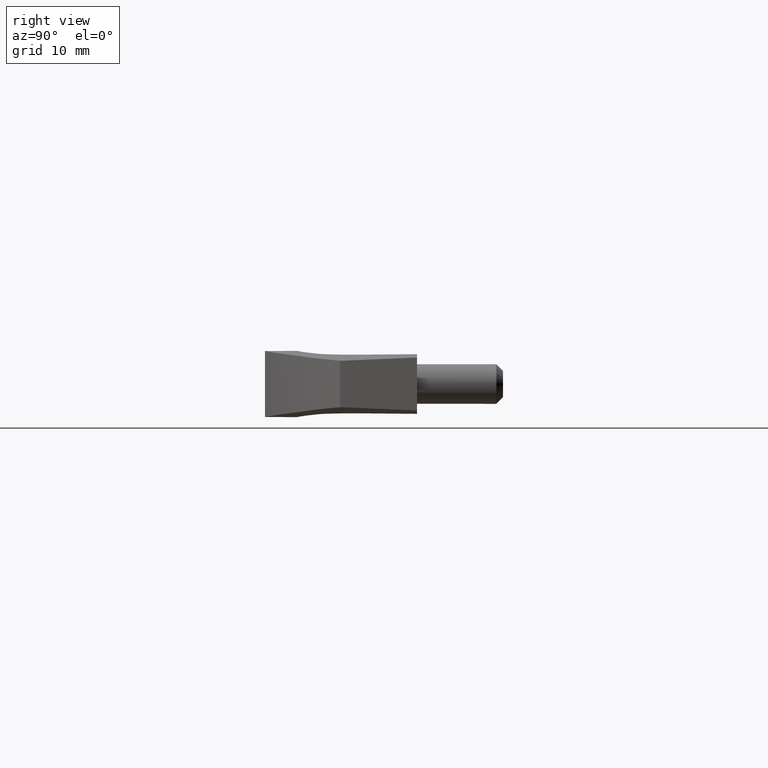
[diagram: clean part render]
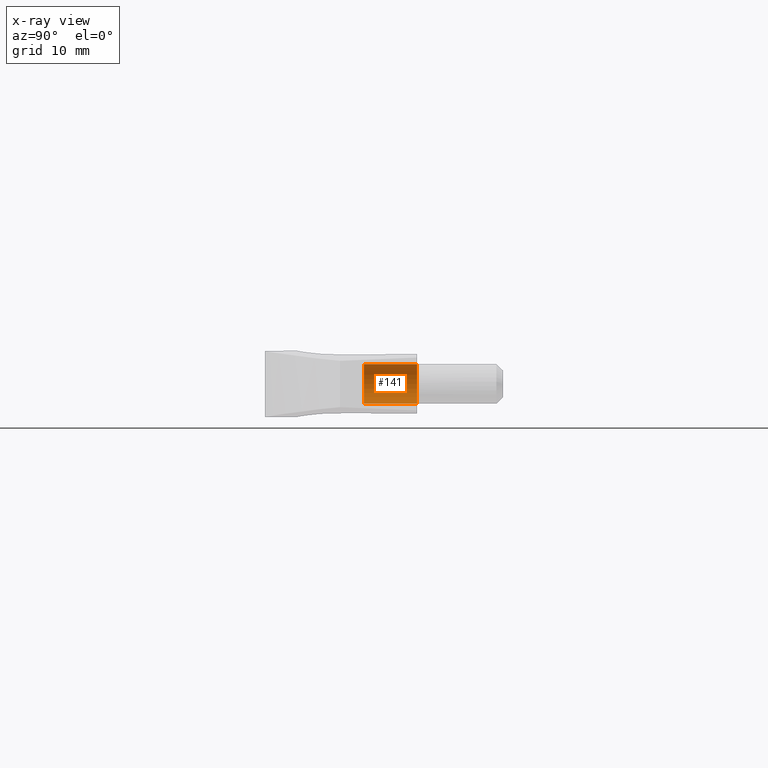
[diagram: x-ray — body ghosted, one internal face saturated and labeled with its STEP entity id]
A machine part, right view, then the same camera in x-ray: the body is ghosted and one INTERNAL B-rep face — a face not visible from any outside direction — is saturated and labeled: STEP entity #141.
In plain terms, the highlighted cylindrical surface (edge-blend (fillet) strip) has radius 3 mm, axis along (-0, -1, -0).
Its self-contained STEP definition (entity closure, byte-faithful):
#141=ADVANCED_FACE('',(#348),#347,.F.);
#347=CYLINDRICAL_SURFACE('',#657,3.00000000000E+00);
#348=FACE_OUTER_BOUND('',#658,.T.);
#654=CARTESIAN_POINT('',(-4.35000000000E+01,-4.89268249254E-15,8.20000000000E+00));
#655=DIRECTION('',(-1.07378739382E-14,-1.12728726745E-15,1.00000000000E+00));
#656=DIRECTION('',(-1.18034234657E-01,9.93009526364E-01,-1.48029736617E-16));
#657=AXIS2_PLACEMENT_3D('',#654,#655,#656);
#658=EDGE_LOOP('',(#780,#781,#782,#783));
#780=ORIENTED_EDGE('',*,*,#822,.T.);
#781=ORIENTED_EDGE('',*,*,#859,.T.);
#782=ORIENTED_EDGE('',*,*,#835,.F.);
#783=ORIENTED_EDGE('',*,*,#860,.F.);
#822=EDGE_CURVE('',#1014,#1006,#1015,.T.);
#835=EDGE_CURVE('',#1097,#1104,#1105,.T.);
#859=EDGE_CURVE('',#1006,#1104,#1262,.T.);
#860=EDGE_CURVE('',#1014,#1097,#1268,.T.);
#1006=VERTEX_POINT('',#1379);
#1014=VERTEX_POINT('',#1385);
#1015=CIRCLE('',#1389,3.00000000000E+00);
#1097=VERTEX_POINT('',#1441);
#1104=VERTEX_POINT('',#1446);
#1105=CIRCLE('',#1450,3.00000000000E+00);
#1262=(BOUNDED_CURVE() B_SPLINE_CURVE(1,(#1883,#1884),.UNSPECIFIED.,.F.,.F.) B_SPLINE_CURVE_WITH_KNOTS((2,2),(8.33333366442E-02,9.16666667899E-01),.UNSPECIFIED.) CURVE() GEOMETRIC_REPRESENTATION_ITEM() RATIONAL_B_SPLINE_CURVE((1.00000000000E+00,1.00000000000E+00)) REPRESENTATION_ITEM('') );
#1268=(BOUNDED_CURVE() B_SPLINE_CURVE(1,(#1885,#1886),.UNSPECIFIED.,.F.,.F.) B_SPLINE_CURVE_WITH_KNOTS((2,2),(8.33333333333E-02,9.16666666667E-01),.UNSPECIFIED.) CURVE() GEOMETRIC_REPRESENTATION_ITEM() RATIONAL_B_SPLINE_CURVE((7.50000000000E-01,7.50000000000E-01)) REPRESENTATION_ITEM('') );
#1379=CARTESIAN_POINT('',(-4.38541016146E+01,2.97902870858E+00,8.51649621620E-17));
#1385=CARTESIAN_POINT('',(-4.31453824164E+01,-2.97896733272E+00,4.27157167692E-17));
#1386=CARTESIAN_POINT('',(-4.35000000000E+01,-9.54791801178E-15,6.38780595447E-17));
#1387=DIRECTION('',(2.37205620252E-16,3.53409805776E-17,-1.00000000000E+00));
#1388=DIRECTION('',(1.00000000000E+00,3.35842464949E-15,2.37205620252E-16));
#1389=AXIS2_PLACEMENT_3D('',#1386,#1387,#1388);
#1441=CARTESIAN_POINT('',(-4.31453824164E+01,-2.97896733272E+00,8.00000000000E+00));
#1446=CARTESIAN_POINT('',(-4.38541016146E+01,2.97902870858E+00,8.00000000000E+00));
#1447=CARTESIAN_POINT('',(-4.35000000000E+01,-9.54791801178E-15,8.00000000000E+00));
#1448=DIRECTION('',(0.00000000000E+00,0.00000000000E+00,-1.00000000000E+00));
#1449=DIRECTION('',(1.00000000000E+00,3.35842464949E-15,0.00000000000E+00));
#1450=AXIS2_PLACEMENT_3D('',#1447,#1448,#1449);
#1883=CARTESIAN_POINT('',(-4.38541027040E+01,2.97902857909E+00,3.17843081854E-08));
#1884=CARTESIAN_POINT('',(-4.38541027040E+01,2.97902857909E+00,8.00000001183E+00));
#1885=CARTESIAN_POINT('',(-4.31458972960E+01,-2.97902857909E+00,5.92118946467E-16));
#1886=CARTESIAN_POINT('',(-4.31458972960E+01,-2.97902857909E+00,8.00000000000E+00));